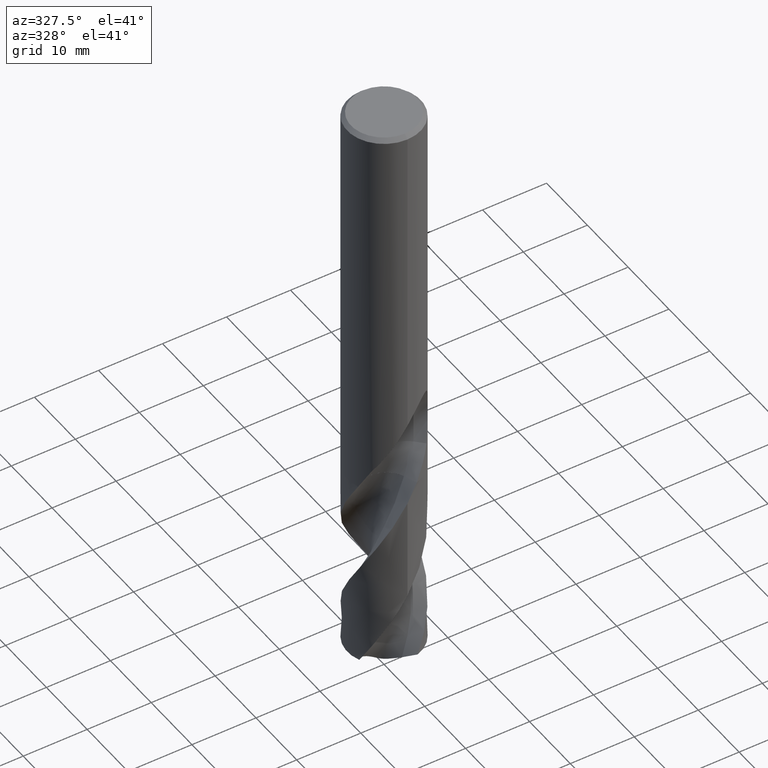
[diagram: clean part render]
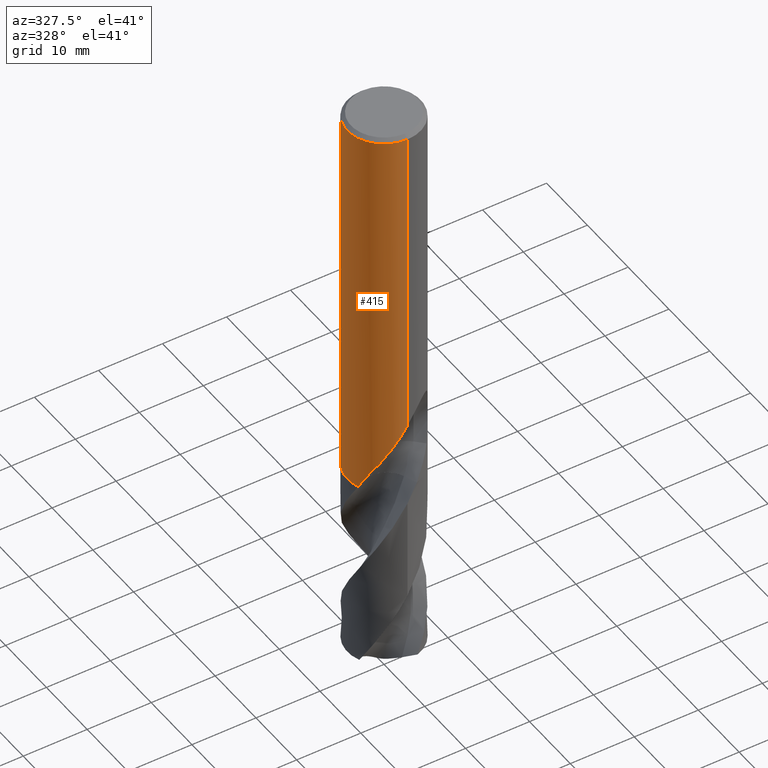
[diagram: same view with one face highlighted and labeled with its STEP entity id]
A machine part, auxiliary view. The second image highlights one B-rep face of the part: STEP entity #415.
In plain terms, the highlighted cylindrical surface (partial cylindrical patch) has radius 5.75 mm, axis along (-0, -0, 1).
Its self-contained STEP definition (entity closure, byte-faithful):
#309=VERTEX_POINT('',#786);
#315=VERTEX_POINT('',#793);
#323=VERTEX_POINT('',#801);
#335=VERTEX_POINT('',#815);
#383=VERTEX_POINT('',#868);
#385=VERTEX_POINT('',#870);
#409=EDGE_CURVE('',#679,#477,#899,.T.);
#415=ADVANCED_FACE('',(#906),#907,.T.);
#433=EDGE_CURVE('',#555,#551,#927,.T.);
#435=EDGE_CURVE('',#335,#461,#929,.T.);
#443=EDGE_CURVE('',#461,#309,#937,.T.);
#449=VERTEX_POINT('',#943);
#461=VERTEX_POINT('',#955);
#463=EDGE_CURVE('',#309,#673,#957,.T.);
#477=VERTEX_POINT('',#972);
#485=EDGE_CURVE('',#385,#597,#980,.T.);
#507=EDGE_CURVE('',#535,#555,#1002,.T.);
#509=VERTEX_POINT('',#1004);
#521=EDGE_CURVE('',#323,#509,#1017,.T.);
#535=VERTEX_POINT('',#1033);
#545=EDGE_CURVE('',#449,#323,#1043,.T.);
#551=VERTEX_POINT('',#1049);
#555=VERTEX_POINT('',#1054);
#561=EDGE_CURVE('',#383,#535,#1061,.T.);
#571=EDGE_CURVE('',#613,#679,#1072,.T.);
#597=VERTEX_POINT('',#1101);
#601=EDGE_CURVE('',#335,#509,#1106,.T.);
#613=VERTEX_POINT('',#1118);
#635=EDGE_CURVE('',#315,#613,#1145,.T.);
#637=EDGE_CURVE('',#551,#385,#1147,.T.);
#665=EDGE_CURVE('',#673,#383,#1179,.T.);
#671=EDGE_CURVE('',#597,#315,#1185,.T.);
#673=VERTEX_POINT('',#1187);
#677=EDGE_CURVE('',#477,#449,#1191,.T.);
#679=VERTEX_POINT('',#1193);
#786=CARTESIAN_POINT('',(1.70232397107709E-012,-5.75,-50.5868840155759));
#793=CARTESIAN_POINT('',(-7.04148653447867E-016,5.75,-39.7128911336578));
#801=CARTESIAN_POINT('',(-3.99669471933839,4.13387606495558,-56.699));
#815=CARTESIAN_POINT('',(-5.36079242262551,-2.07952028158442,-61.4));
#868=CARTESIAN_POINT('',(0.0,5.75,-0.600000000000001));
#870=CARTESIAN_POINT('',(-1.0350734039088,5.65606957599716,-38.3171221986971));
#899=LINE('',#4269,#4270);
#906=FACE_OUTER_BOUND('',#4278,.T.);
#907=CYLINDRICAL_SURFACE('',#4279,5.75);
#927=B_SPLINE_CURVE_WITH_KNOTS('',3,(#4819,#4820,#4821,#4822,#4823,#4824,#4825,#4826,#4827,#4828,#4829,#4830,#4831,#4832,#4833,#4834,#4835,#4836,#4837,#4838,#4839,#4840,#4841,#4842,#4843,#4844,#4845),.UNSPECIFIED.,.F.,.F.,(4,2,3,2,2,2,2,2,2,2,2,2,4),(-0.542260680717672,-0.271130340358836,0.0,0.271130340358836,0.542260680717672,0.81382236730238,1.08538405388709,1.35622479660675,1.6270655393264,1.89811906609053,2.16917259285465,2.44022611961878,2.7112796463829),.UNSPECIFIED.);
#929=B_SPLINE_CURVE_WITH_KNOTS('',3,(#4848,#4849,#4850,#4851,#4852,#4853,#4854,#4855,#4856,#4857,#4858,#4859,#4860,#4861),.UNSPECIFIED.,.F.,.F.,(4,2,2,2,2,2,4),(0.0,0.688693295586284,1.95333723567584,2.81418356454147,3.32159391171405,3.41306655957196,3.57984355739501),.UNSPECIFIED.);
#937=B_SPLINE_CURVE_WITH_KNOTS('',3,(#4922,#4923,#4924,#4925,#4926,#4927,#4928,#4929,#4930,#4931,#4932,#4933,#4934,#4935,#4936,#4937,#4938,#4939,#4940,#4941,#4942,#4943,#4944,#4945,#4946,#4947,#4948,#4949,#4950,#4951),.UNSPECIFIED.,.F.,.F.,(4,2,2,2,2,2,2,2,2,2,2,2,2,2,4),(0.0,2.8171749865563,4.35541909473943,5.74868100875242,7.36731579709897,9.31166694046346,10.9968691014969,11.76054553291,12.318699825472,12.8468769972929,13.516901218315,14.4971738216855,15.8907465909193,16.8026882899799,17.7610770432493),.UNSPECIFIED.);
#943=CARTESIAN_POINT('',(-4.67844243896317,3.34285452051213,-53.5504136850521));
#955=CARTESIAN_POINT('',(-3.66398183961201,-4.4314486433889,-56.699));
#957=LINE('',#5019,#5020);
#972=CARTESIAN_POINT('',(-1.70498850633619E-012,5.75,-50.5868840155758));
#980=B_SPLINE_CURVE_WITH_KNOTS('',3,(#5079,#5080,#5081,#5082,#5083,#5084,#5085,#5086,#5087,#5088,#5089,#5090,#5091,#5092),.UNSPECIFIED.,.F.,.F.,(4,2,2,2,2,2,4),(3.12988221926406,3.57680263033156,4.02372304139905,4.47064345246655,4.91687959433077,5.363115736195,5.81121762863298),.UNSPECIFIED.);
#1002=B_SPLINE_CURVE_WITH_KNOTS('',3,(#5164,#5165,#5166,#5167,#5168,#5169,#5170,#5171,#5172,#5173,#5174,#5175,#5176,#5177,#5178,#5179,#5180,#5181,#5182,#5183,#5184,#5185,#5186,#5187,#5188,#5189,#5190),.UNSPECIFIED.,.F.,.F.,(4,2,3,2,2,2,2,2,2,2,2,2,4),(-0.542260680717672,-0.271130340358836,0.0,0.271130340358836,0.542260680717672,0.81382236730238,1.08538405388709,1.35622479660675,1.6270655393264,1.89811906609053,2.16917259285465,2.44022611961878,2.7112796463829),.UNSPECIFIED.);
#1004=CARTESIAN_POINT('',(-1.61946791751189,5.5172297092064,-61.4));
#1017=B_SPLINE_CURVE_WITH_KNOTS('',3,(#5272,#5273,#5274,#5275,#5276,#5277,#5278,#5279,#5280,#5281),.UNSPECIFIED.,.F.,.F.,(4,2,2,2,4),(0.0,1.25602880897864,1.80568994867505,3.44768913030673,5.21616609413531),.UNSPECIFIED.);
#1033=CARTESIAN_POINT('',(2.77694703732907E-015,5.75,-39.0232688117743));
#1043=B_SPLINE_CURVE_WITH_KNOTS('',3,(#5414,#5415,#5416,#5417),.UNSPECIFIED.,.F.,.F.,(4,4),(0.0,3.30463943191213),.UNSPECIFIED.);
#1049=CARTESIAN_POINT('',(-0.562333990228013,5.72243658623093,-38.3171221986971));
#1054=CARTESIAN_POINT('',(-0.486378944383046,5.72939224721618,-38.6432837483006));
#1061=LINE('',#5612,#5613);
#1072=B_SPLINE_CURVE_WITH_KNOTS('',3,(#5639,#5640,#5641,#5642,#5643,#5644,#5645,#5646,#5647,#5648,#5649,#5650,#5651,#5652,#5653,#5654),.UNSPECIFIED.,.F.,.F.,(4,2,2,2,2,2,2,4),(5.8632023037446,6.17184060852364,6.48055897043378,6.78927733234392,7.09799569425406,7.4067140561642,7.71508849653111,8.02346293689803),.UNSPECIFIED.);
#1101=CARTESIAN_POINT('',(1.29645542652432E-015,5.75,-39.5000801551882));
#1106=CIRCLE('',#6221,5.75);
#1118=CARTESIAN_POINT('',(-1.337052752443,5.59238678358218,-40.3720803908795));
#1145=ELLIPSE('',#6536,6.41083848424645,5.75);
#1147=CIRCLE('',#6539,5.75);
#1179=CIRCLE('',#6583,5.75);
#1185=LINE('',#6594,#6595);
#1187=CARTESIAN_POINT('',(7.04148653447867E-016,-5.75,-0.600000000000001));
#1191=B_SPLINE_CURVE_WITH_KNOTS('',3,(#6604,#6605,#6606,#6607,#6608,#6609,#6610,#6611,#6612,#6613,#6614,#6615,#6616,#6617,#6618,#6619,#6620,#6621,#6622,#6623,#6624,#6625,#6626,#6627,#6628,#6629,#6630,#6631,#6632,#6633),.UNSPECIFIED.,.F.,.F.,(4,2,2,2,2,2,2,2,2,2,2,2,2,2,4),(0.0,2.81717498655627,4.35541909473941,5.74868100875268,7.36731579709932,9.31166694046389,10.9968691014976,11.7605455329106,12.3186998254726,12.8468769972937,13.5169012183158,14.4971738216882,15.8907465909276,16.8026882899919,17.7610770432652),.UNSPECIFIED.);
#1193=CARTESIAN_POINT('',(-1.69586622685265E-015,5.75,-41.0310253601033));
#4269=CARTESIAN_POINT('',(-7.04148653447867E-016,5.75,-52.2));
#4270=VECTOR('',#7065,1.0);
#4278=EDGE_LOOP('',(#7077,#7078,#7079,#7080,#7081,#7082,#7083,#7084,#7085,#7086,#7087,#7088,#7089,#7090,#7091,#7092,#7093));
#4279=AXIS2_PLACEMENT_3D('',#7094,#7095,#7096);
#4819=CARTESIAN_POINT('',(0.665055313262795,5.71140975857108,-37.8135288247627));
#4820=CARTESIAN_POINT('',(0.728719941626334,5.70399644011734,-37.8772455430525));
#4821=CARTESIAN_POINT('',(0.783972555909784,5.6964251801033,-37.9579532916424));
#4822=CARTESIAN_POINT('',(0.857316777215597,5.68584916753781,-38.1349577963973));
#4823=CARTESIAN_POINT('',(0.875400981188567,5.68297220846047,-38.2312652324672));
#4824=CARTESIAN_POINT('',(0.875400981188567,5.68297220846047,-38.3216420125868));
#4825=CARTESIAN_POINT('',(0.875400981188567,5.68297220846047,-38.4120187927064));
#4826=CARTESIAN_POINT('',(0.857316777215594,5.68584916753781,-38.5083262287763));
#4827=CARTESIAN_POINT('',(0.783972555909777,5.6964251801033,-38.6853307335312));
#4828=CARTESIAN_POINT('',(0.728719941626335,5.70399644011734,-38.766038482121));
#4829=CARTESIAN_POINT('',(0.601289399675589,5.71883487100896,-38.8935732867952));
#4830=CARTESIAN_POINT('',(0.520529146072882,5.72707934858392,-38.9489188745708));
#4831=CARTESIAN_POINT('',(0.343397135720093,5.74042392717874,-39.0223941762263));
#4832=CARTESIAN_POINT('',(0.247013407470696,5.74540497691066,-39.0405166027747));
#4833=CARTESIAN_POINT('',(0.0662796000948833,5.75032673312684,-39.0405166027747));
#4834=CARTESIAN_POINT('',(-0.0299930891722628,5.7506036488309,-39.0224801524967));
#4835=CARTESIAN_POINT('',(-0.207064590827349,5.74695277226802,-38.949149153569));
#4836=CARTESIAN_POINT('',(-0.28786701123708,5.74314527196387,-38.893857377682));
#4837=CARTESIAN_POINT('',(-0.415506339373133,5.73532439660139,-38.7662848616183));
#4838=CARTESIAN_POINT('',(-0.470852779456986,5.73080761833292,-38.6854670756792));
#4839=CARTESIAN_POINT('',(-0.54427533627526,5.72430106332742,-38.5083241779365));
#4840=CARTESIAN_POINT('',(-0.562348199187247,5.72243518992316,-38.4119931881748));
#4841=CARTESIAN_POINT('',(-0.562348199187247,5.72243518992316,-38.2312908369988));
#4842=CARTESIAN_POINT('',(-0.54427533627526,5.72430106332742,-38.1349598472371));
#4843=CARTESIAN_POINT('',(-0.470852779456986,5.73080761833292,-37.9578169494944));
#4844=CARTESIAN_POINT('',(-0.415506339373133,5.73532439660139,-37.8769991635552));
#4845=CARTESIAN_POINT('',(-0.3516616154235,5.73923636978281,-37.8131878587593));
#4848=CARTESIAN_POINT('',(-5.36079242262552,-2.07952028158439,-61.4));
#4849=CARTESIAN_POINT('',(-5.31815592912133,-2.18943283849892,-61.2030198293473));
#4850=CARTESIAN_POINT('',(-5.27203025641891,-2.29831562001693,-61.0063341837334));
#4851=CARTESIAN_POINT('',(-5.13131639553502,-2.60374621663402,-60.448796732685));
#4852=CARTESIAN_POINT('',(-5.03105393613766,-2.79240378580668,-60.1022253444382));
#4853=CARTESIAN_POINT('',(-4.8433710292228,-3.10254953244647,-59.4803769976745));
#4854=CARTESIAN_POINT('',(-4.7704035994247,-3.21346935373476,-59.2439684349408));
#4855=CARTESIAN_POINT('',(-4.63815134587901,-3.39959138512094,-58.8230330735568));
#4856=CARTESIAN_POINT('',(-4.58808941472661,-3.46681797180604,-58.6665944522247));
#4857=CARTESIAN_POINT('',(-4.52789912795792,-3.54412943402404,-58.4812895855111));
#4858=CARTESIAN_POINT('',(-4.46657822755628,-3.62379043786462,-58.289127114274));
#4859=CARTESIAN_POINT('',(-4.2096304705012,-3.92516572591532,-57.6357052689384));
#4860=CARTESIAN_POINT('',(-3.98620078199677,-4.16503365174999,-57.177841709083));
#4861=CARTESIAN_POINT('',(-3.66398183961201,-4.4314486433889,-56.699));
#4922=CARTESIAN_POINT('',(-3.66398183961202,-4.4314486433889,-56.699));
#4923=CARTESIAN_POINT('',(-3.28469125345466,-4.74505124412977,-55.8992359066278));
#4924=CARTESIAN_POINT('',(-2.84859315606738,-5.02382214288511,-55.1535975358506));
#4925=CARTESIAN_POINT('',(-2.08816815528453,-5.36551442188281,-53.907957833142));
#4926=CARTESIAN_POINT('',(-1.81453142385869,-5.46380641301554,-53.4696997763265));
#4927=CARTESIAN_POINT('',(-1.28480531922885,-5.61070716067454,-52.6213459774143));
#4928=CARTESIAN_POINT('',(-1.03108114526332,-5.66260684249678,-52.2152045011142));
#4929=CARTESIAN_POINT('',(-0.481875227421434,-5.73751084499726,-51.3398619851425));
#4930=CARTESIAN_POINT('',(-0.181805950301667,-5.75509620801886,-50.8638091884993));
#4931=CARTESIAN_POINT('',(0.484571263925021,-5.74107906079819,-49.8453749828901));
#4932=CARTESIAN_POINT('',(0.879665693797984,-5.69772468487856,-49.2658747438574));
#4933=CARTESIAN_POINT('',(1.64155415497671,-5.52263921109525,-48.3103189418829));
#4934=CARTESIAN_POINT('',(2.06307642935365,-5.38924627147404,-47.8440452682675));
#4935=CARTESIAN_POINT('',(2.70104639404365,-5.08091277152312,-47.4074267193457));
#4936=CARTESIAN_POINT('',(2.91221879700352,-4.96450971598602,-47.2995207501852));
#4937=CARTESIAN_POINT('',(3.2822413707021,-4.72483298169877,-47.2166297098576));
#4938=CARTESIAN_POINT('',(3.43400839550245,-4.61568240865056,-47.215081989828));
#4939=CARTESIAN_POINT('',(3.71668266733197,-4.39085503134404,-47.2876291510386));
#4940=CARTESIAN_POINT('',(3.84031028491718,-4.28226790548659,-47.3556484995037));
#4941=CARTESIAN_POINT('',(4.09189111142438,-4.04430771785264,-47.5684731657907));
#4942=CARTESIAN_POINT('',(4.20828378483846,-3.92099078860778,-47.7256058683418));
#4943=CARTESIAN_POINT('',(4.44669360930046,-3.65171927497947,-48.1558839718304));
#4944=CARTESIAN_POINT('',(4.56064875590902,-3.5050816943212,-48.4750231568984));
#4945=CARTESIAN_POINT('',(4.77493717979459,-3.21063533872467,-49.3679391302827));
#4946=CARTESIAN_POINT('',(4.85240738776117,-3.0852154112669,-50.0038619484775));
#4947=CARTESIAN_POINT('',(4.89075188811313,-3.02388236629395,-51.180797908064));
#4948=CARTESIAN_POINT('',(4.88173600494501,-3.03883152767481,-51.6495115440474));
#4949=CARTESIAN_POINT('',(4.81805569776868,-3.13887432406016,-52.6007660828657));
#4950=CARTESIAN_POINT('',(4.76119673584027,-3.22703697232369,-53.0797265997126));
#4951=CARTESIAN_POINT('',(4.67844243896317,-3.34285452051213,-53.5504136850521));
#5019=CARTESIAN_POINT('',(7.04148653447867E-016,-5.75,-52.2));
#5020=VECTOR('',#7117,1.0);
#5079=CARTESIAN_POINT('',(-0.944781468433397,5.67185048964664,-37.8729058108232));
#5080=CARTESIAN_POINT('',(-1.0052577809906,5.66177672544981,-38.0186610645483));
#5081=CARTESIAN_POINT('',(-1.03510901790186,5.65606305844076,-38.177328390377));
#5082=CARTESIAN_POINT('',(-1.03510901790186,5.65606305844076,-38.4752753310886));
#5083=CARTESIAN_POINT('',(-1.0052577809906,5.66177672544981,-38.6339426569173));
#5084=CARTESIAN_POINT('',(-0.884305155876206,5.68192425384348,-38.9254531643675));
#5085=CARTESIAN_POINT('',(-0.793221214286719,5.69600621995662,-39.0583277985523));
#5086=CARTESIAN_POINT('',(-0.583367739637336,5.72130532340411,-39.26798940393));
#5087=CARTESIAN_POINT('',(-0.450551023809837,5.73417630624695,-39.3589153185755));
#5088=CARTESIAN_POINT('',(-0.159248308912472,5.7496446943526,-39.4796135067131));
#5089=CARTESIAN_POINT('',(-0.00073837702387225,5.75192356025839,-39.5093686300866));
#5090=CARTESIAN_POINT('',(0.297275590858334,5.74425258955733,-39.5093686300866));
#5091=CARTESIAN_POINT('',(0.456073629294032,5.7337569838996,-39.4793904488177));
#5092=CARTESIAN_POINT('',(0.601803168335363,5.71842049403343,-39.4188545223117));
#5164=CARTESIAN_POINT('',(0.665055313262795,5.71140975857108,-37.8135288247627));
#5165=CARTESIAN_POINT('',(0.728719941626334,5.70399644011734,-37.8772455430525));
#5166=CARTESIAN_POINT('',(0.783972555909784,5.6964251801033,-37.9579532916424));
#5167=CARTESIAN_POINT('',(0.857316777215597,5.68584916753781,-38.1349577963973));
#5168=CARTESIAN_POINT('',(0.875400981188567,5.68297220846047,-38.2312652324672));
#5169=CARTESIAN_POINT('',(0.875400981188567,5.68297220846047,-38.3216420125868));
#5170=CARTESIAN_POINT('',(0.875400981188567,5.68297220846047,-38.4120187927064));
#5171=CARTESIAN_POINT('',(0.857316777215594,5.68584916753781,-38.5083262287763));
#5172=CARTESIAN_POINT('',(0.783972555909777,5.6964251801033,-38.6853307335312));
#5173=CARTESIAN_POINT('',(0.728719941626335,5.70399644011734,-38.766038482121));
#5174=CARTESIAN_POINT('',(0.601289399675589,5.71883487100896,-38.8935732867952));
#5175=CARTESIAN_POINT('',(0.520529146072882,5.72707934858392,-38.9489188745708));
#5176=CARTESIAN_POINT('',(0.343397135720093,5.74042392717874,-39.0223941762263));
#5177=CARTESIAN_POINT('',(0.247013407470696,5.74540497691066,-39.0405166027747));
#5178=CARTESIAN_POINT('',(0.0662796000948833,5.75032673312684,-39.0405166027747));
#5179=CARTESIAN_POINT('',(-0.0299930891722628,5.7506036488309,-39.0224801524967));
#5180=CARTESIAN_POINT('',(-0.207064590827349,5.74695277226802,-38.949149153569));
#5181=CARTESIAN_POINT('',(-0.28786701123708,5.74314527196387,-38.893857377682));
#5182=CARTESIAN_POINT('',(-0.415506339373133,5.73532439660139,-38.7662848616183));
#5183=CARTESIAN_POINT('',(-0.470852779456986,5.73080761833292,-38.6854670756792));
#5184=CARTESIAN_POINT('',(-0.54427533627526,5.72430106332742,-38.5083241779365));
#5185=CARTESIAN_POINT('',(-0.562348199187247,5.72243518992316,-38.4119931881748));
#5186=CARTESIAN_POINT('',(-0.562348199187247,5.72243518992316,-38.2312908369988));
#5187=CARTESIAN_POINT('',(-0.54427533627526,5.72430106332742,-38.1349598472371));
#5188=CARTESIAN_POINT('',(-0.470852779456986,5.73080761833292,-37.9578169494944));
#5189=CARTESIAN_POINT('',(-0.415506339373133,5.73532439660139,-37.8769991635552));
#5190=CARTESIAN_POINT('',(-0.3516616154235,5.73923636978281,-37.8131878587593));
#5272=CARTESIAN_POINT('',(-3.99669471933839,4.13387606495558,-56.699));
#5273=CARTESIAN_POINT('',(-3.85086621729516,4.27486529513258,-57.0652593394604));
#5274=CARTESIAN_POINT('',(-3.69499305115648,4.41114278607701,-57.4304705872843));
#5275=CARTESIAN_POINT('',(-3.44427549426955,4.60529956649229,-57.9633409996305));
#5276=CARTESIAN_POINT('',(-3.3664751056499,4.66249063033855,-58.1226256160157));
#5277=CARTESIAN_POINT('',(-3.04802947390574,4.88431747968109,-58.759031228622));
#5278=CARTESIAN_POINT('',(-2.79423383501802,5.03435100044627,-59.2495440139501));
#5279=CARTESIAN_POINT('',(-2.23461789854742,5.30785301140714,-60.3050605531162));
#5280=CARTESIAN_POINT('',(-1.93147850746881,5.42564549629681,-60.8525348546339));
#5281=CARTESIAN_POINT('',(-1.61946791751188,5.51722970920642,-61.4));
#5414=CARTESIAN_POINT('',(-4.67844243901578,3.34285452043849,-53.550413685081));
#5415=CARTESIAN_POINT('',(-4.49306717824207,3.60229371584613,-54.604800690995));
#5416=CARTESIAN_POINT('',(-4.26964044052117,3.86998795960936,-55.6654623104438));
#5417=CARTESIAN_POINT('',(-3.99669471933839,4.13387606495558,-56.699));
#5612=CARTESIAN_POINT('',(-7.04148653447867E-016,5.75,-52.2));
#5613=VECTOR('',#7182,1.0);
#5639=CARTESIAN_POINT('',(-1.37938263131757,5.58209669894919,-40.3121636567989));
#5640=CARTESIAN_POINT('',(-1.31971658596366,5.59684067616275,-40.400789384163));
#5641=CARTESIAN_POINT('',(-1.2521151128834,5.61249607556198,-40.4821138874523));
#5642=CARTESIAN_POINT('',(-1.10819667612763,5.64267732421375,-40.6260731548511));
#5643=CARTESIAN_POINT('',(-1.02686364674645,5.65827926011755,-40.6937182757004));
#5644=CARTESIAN_POINT('',(-0.849570709285179,5.68760078981706,-40.8131353601454));
#5645=CARTESIAN_POINT('',(-0.75361220542554,5.70129364851767,-40.8649159713678));
#5646=CARTESIAN_POINT('',(-0.553121061739172,5.72422376508268,-40.9482341886752));
#5647=CARTESIAN_POINT('',(-0.448418749243786,5.73346167237236,-40.979837687357));
#5648=CARTESIAN_POINT('',(-0.237493033830342,5.74606466915585,-41.0213622379641));
#5649=CARTESIAN_POINT('',(-0.13126703811896,5.74942246094057,-41.0312723335086));
#5650=CARTESIAN_POINT('',(0.0744280603072248,5.7504370748861,-41.0312723335086));
#5651=CARTESIAN_POINT('',(0.180568239893237,5.74813297158533,-41.0213839117503));
#5652=CARTESIAN_POINT('',(0.391376205129131,5.73763559441878,-40.97991807761));
#5653=CARTESIAN_POINT('',(0.496046430481257,5.72944966275937,-40.9483512107178));
#5654=CARTESIAN_POINT('',(0.596277612428726,5.71899930135651,-40.9067265794582));
#6221=AXIS2_PLACEMENT_3D('',#7231,#7232,#7233);
#6536=AXIS2_PLACEMENT_3D('',#7284,#7285,#7286);
#6539=AXIS2_PLACEMENT_3D('',#7287,#7288,#7289);
#6583=AXIS2_PLACEMENT_3D('',#7331,#7332,#7333);
#6594=CARTESIAN_POINT('',(-7.04148653447867E-016,5.75,-52.2));
#6595=VECTOR('',#7334,1.0);
#6604=CARTESIAN_POINT('',(3.66398183961201,4.4314486433889,-56.699));
#6605=CARTESIAN_POINT('',(3.28469125345466,4.74505124412977,-55.8992359066278));
#6606=CARTESIAN_POINT('',(2.8485931560674,5.02382214288511,-55.1535975358507));
#6607=CARTESIAN_POINT('',(2.08816815528451,5.36551442188282,-53.907957833142));
#6608=CARTESIAN_POINT('',(1.81453142385865,5.46380641301555,-53.4696997763264));
#6609=CARTESIAN_POINT('',(1.28480531922883,5.61070716067455,-52.6213459774143));
#6610=CARTESIAN_POINT('',(1.03108114526329,5.66260684249678,-52.2152045011142));
#6611=CARTESIAN_POINT('',(0.48187522742152,5.73751084499725,-51.3398619851427));
#6612=CARTESIAN_POINT('',(0.181805950301709,5.75509620801887,-50.8638091884994));
#6613=CARTESIAN_POINT('',(-0.484571263925058,5.7410790607982,-49.84537498289));
#6614=CARTESIAN_POINT('',(-0.879665693797988,5.69772468487856,-49.2658747438574));
#6615=CARTESIAN_POINT('',(-1.64155415497672,5.52263921109525,-48.3103189418829));
#6616=CARTESIAN_POINT('',(-2.06307642935365,5.38924627147403,-47.8440452682675));
#6617=CARTESIAN_POINT('',(-2.70104639404359,5.08091277152314,-47.4074267193458));
#6618=CARTESIAN_POINT('',(-2.9122187970035,4.96450971598603,-47.2995207501852));
#6619=CARTESIAN_POINT('',(-3.28224137070216,4.72483298169873,-47.2166297098576));
#6620=CARTESIAN_POINT('',(-3.43400839550247,4.61568240865053,-47.2150819898281));
#6621=CARTESIAN_POINT('',(-3.71668266733195,4.39085503134404,-47.2876291510386));
#6622=CARTESIAN_POINT('',(-3.84031028491716,4.2822679054866,-47.3556484995037));
#6623=CARTESIAN_POINT('',(-4.09189111142437,4.04430771785265,-47.5684731657907));
#6624=CARTESIAN_POINT('',(-4.20828378483844,3.9209907886078,-47.7256058683418));
#6625=CARTESIAN_POINT('',(-4.44669360930074,3.65171927497915,-48.1558839718309));
#6626=CARTESIAN_POINT('',(-4.56064875590921,3.50508169432095,-48.4750231568992));
#6627=CARTESIAN_POINT('',(-4.77493717979459,3.21063533872467,-49.3679391302827));
#6628=CARTESIAN_POINT('',(-4.85240738776117,3.0852154112669,-50.0038619484775));
#6629=CARTESIAN_POINT('',(-4.89075188811312,3.02388236629396,-51.180797908064));
#6630=CARTESIAN_POINT('',(-4.88173600494501,3.03883152767481,-51.6495115440474));
#6631=CARTESIAN_POINT('',(-4.81805569776868,3.13887432406017,-52.6007660828657));
#6632=CARTESIAN_POINT('',(-4.76119673584026,3.2270369723237,-53.0797265997126));
#6633=CARTESIAN_POINT('',(-4.67844243896317,3.34285452051213,-53.5504136850521));
#7065=DIRECTION('',(0.0,0.0,-1.0));
#7077=ORIENTED_EDGE('',*,*,#561,.T.);
#7078=ORIENTED_EDGE('',*,*,#507,.T.);
#7079=ORIENTED_EDGE('',*,*,#433,.T.);
#7080=ORIENTED_EDGE('',*,*,#637,.T.);
#7081=ORIENTED_EDGE('',*,*,#485,.T.);
#7082=ORIENTED_EDGE('',*,*,#671,.T.);
#7083=ORIENTED_EDGE('',*,*,#635,.T.);
#7084=ORIENTED_EDGE('',*,*,#571,.T.);
#7085=ORIENTED_EDGE('',*,*,#409,.T.);
#7086=ORIENTED_EDGE('',*,*,#677,.T.);
#7087=ORIENTED_EDGE('',*,*,#545,.T.);
#7088=ORIENTED_EDGE('',*,*,#521,.T.);
#7089=ORIENTED_EDGE('',*,*,#601,.F.);
#7090=ORIENTED_EDGE('',*,*,#435,.T.);
#7091=ORIENTED_EDGE('',*,*,#443,.T.);
#7092=ORIENTED_EDGE('',*,*,#463,.T.);
#7093=ORIENTED_EDGE('',*,*,#665,.T.);
#7094=CARTESIAN_POINT('',(0.0,0.0,-52.2));
#7095=DIRECTION('',(-0.0,-0.0,1.0));
#7096=DIRECTION('',(0.0,1.0,0.0));
#7117=DIRECTION('',(-0.0,-0.0,1.0));
#7182=DIRECTION('',(0.0,0.0,-1.0));
#7231=CARTESIAN_POINT('',(0.0,0.0,-61.4));
#7232=DIRECTION('',(0.0,0.0,-1.0));
#7233=DIRECTION('',(0.0,1.0,0.0));
#7284=CARTESIAN_POINT('',(0.0,0.0,-39.7128911336578));
#7285=DIRECTION('',(-0.442195774284071,0.0,0.896918556617774));
#7286=DIRECTION('',(0.896918556617774,-0.0,0.442195774284071));
#7287=CARTESIAN_POINT('',(0.0,0.0,-38.3171221986971));
#7288=DIRECTION('',(0.0,-0.0,1.0));
#7289=DIRECTION('',(0.0,1.0,0.0));
#7331=CARTESIAN_POINT('',(0.0,0.0,-0.600000000000001));
#7332=DIRECTION('',(0.0,0.0,-1.0));
#7333=DIRECTION('',(0.0,1.0,0.0));
#7334=DIRECTION('',(0.0,0.0,-1.0));